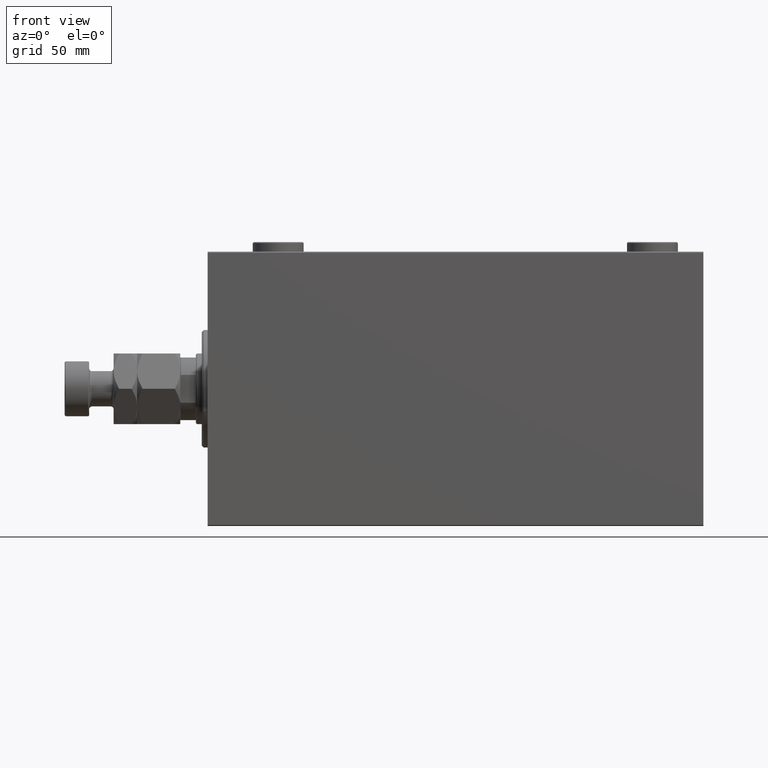
[diagram: clean part render]
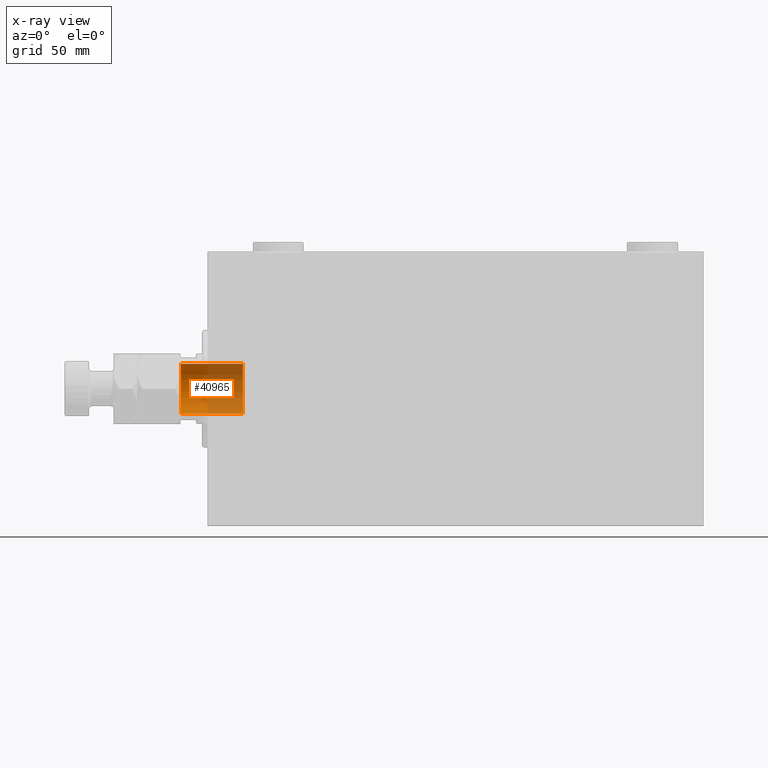
[diagram: x-ray — body ghosted, one internal face saturated and labeled with its STEP entity id]
A machine part, front view, then the same camera in x-ray: the body is ghosted and one INTERNAL B-rep face — a face not visible from any outside direction — is saturated and labeled: STEP entity #40965.
In plain terms, the highlighted cylindrical surface (edge-blend (fillet) strip) has radius 12.75 mm, axis along (-1, 0, 0).
Its self-contained STEP definition (entity closure, byte-faithful):
#3474 = CARTESIAN_POINT ( 'NONE',  ( -12.74999999999999645, 1.561424668912874717E-15, 245.6999999999999886 ) ) ;
#3548 = EDGE_CURVE ( 'NONE', #10351, #33960, #22239, .T. ) ;
#7126 = ORIENTED_EDGE ( 'NONE', *, *, #25548, .F. ) ;
#8246 = DIRECTION ( 'NONE',  ( -0.000000000000000000, -0.000000000000000000, 1.000000000000000000 ) ) ;
#8470 = DIRECTION ( 'NONE',  ( 1.000000000000000000, 0.000000000000000000, 0.000000000000000000 ) ) ;
#10314 = CARTESIAN_POINT ( 'NONE',  ( 12.74999999999999645, 0.000000000000000000, 246.0000000000000000 ) ) ;
#10351 = VERTEX_POINT ( 'NONE', #39429 ) ;
#13657 = DIRECTION ( 'NONE',  ( -0.000000000000000000, -0.000000000000000000, 1.000000000000000000 ) ) ;
#16021 = CARTESIAN_POINT ( 'NONE',  ( 12.74999999999999467, 0.000000000000000000, 214.0000000000000000 ) ) ;
#16215 = VECTOR ( 'NONE', #13657, 1000.000000000000000 ) ;
#16776 = LINE ( 'NONE', #24849, #43120 ) ;
#17272 = DIRECTION ( 'NONE',  ( -0.000000000000000000, -0.000000000000000000, 1.000000000000000000 ) ) ;
#19337 = CARTESIAN_POINT ( 'NONE',  ( 0.000000000000000000, 0.000000000000000000, 245.6999999999999886 ) ) ;
#22239 = CIRCLE ( 'NONE', #27547, 12.74999999999999645 ) ;
#22579 = EDGE_CURVE ( 'NONE', #35598, #10351, #31718, .T. ) ;
#24849 = CARTESIAN_POINT ( 'NONE',  ( -12.74999999999999645, 1.561424668912874717E-15, 246.0000000000000000 ) ) ;
#25548 = EDGE_CURVE ( 'NONE', #35598, #45204, #31455, .T. ) ;
#25573 = FACE_OUTER_BOUND ( 'NONE', #39647, .T. ) ;
#27547 = AXIS2_PLACEMENT_3D ( 'NONE', #19337, #30483, #34057 ) ;
#30483 = DIRECTION ( 'NONE',  ( 0.000000000000000000, 0.000000000000000000, 1.000000000000000000 ) ) ;
#30690 = AXIS2_PLACEMENT_3D ( 'NONE', #33919, #8246, #8470 ) ;
#31455 = CIRCLE ( 'NONE', #30690, 12.74999999999999467 ) ;
#31718 = LINE ( 'NONE', #10314, #16215 ) ;
#33228 = CARTESIAN_POINT ( 'NONE',  ( -12.74999999999999467, 1.561424668912874519E-15, 214.0000000000000000 ) ) ;
#33919 = CARTESIAN_POINT ( 'NONE',  ( 0.000000000000000000, 0.000000000000000000, 214.0000000000000000 ) ) ;
#33960 = VERTEX_POINT ( 'NONE', #3474 ) ;
#34057 = DIRECTION ( 'NONE',  ( 1.000000000000000000, 0.000000000000000000, 0.000000000000000000 ) ) ;
#34726 = ORIENTED_EDGE ( 'NONE', *, *, #22579, .T. ) ;
#34840 = AXIS2_PLACEMENT_3D ( 'NONE', #42931, #17272, #39369 ) ;
#35245 = ORIENTED_EDGE ( 'NONE', *, *, #38852, .F. ) ;
#35598 = VERTEX_POINT ( 'NONE', #16021 ) ;
#38852 = EDGE_CURVE ( 'NONE', #45204, #33960, #16776, .T. ) ;
#39369 = DIRECTION ( 'NONE',  ( 1.000000000000000000, 0.000000000000000000, 0.000000000000000000 ) ) ;
#39429 = CARTESIAN_POINT ( 'NONE',  ( 12.74999999999999645, 0.000000000000000000, 245.6999999999999886 ) ) ;
#39647 = EDGE_LOOP ( 'NONE', ( #35245, #7126, #34726, #41620 ) ) ;
#40068 = CYLINDRICAL_SURFACE ( 'NONE', #34840, 12.74999999999999645 ) ;
#40965 = ADVANCED_FACE ( 'NONE', ( #25573 ), #40068, .F. ) ;
#41620 = ORIENTED_EDGE ( 'NONE', *, *, #3548, .T. ) ;
#42931 = CARTESIAN_POINT ( 'NONE',  ( 0.000000000000000000, 0.000000000000000000, 246.0000000000000000 ) ) ;
#43120 = VECTOR ( 'NONE', #46468, 1000.000000000000000 ) ;
#45204 = VERTEX_POINT ( 'NONE', #33228 ) ;
#46468 = DIRECTION ( 'NONE',  ( -0.000000000000000000, -0.000000000000000000, 1.000000000000000000 ) ) ;